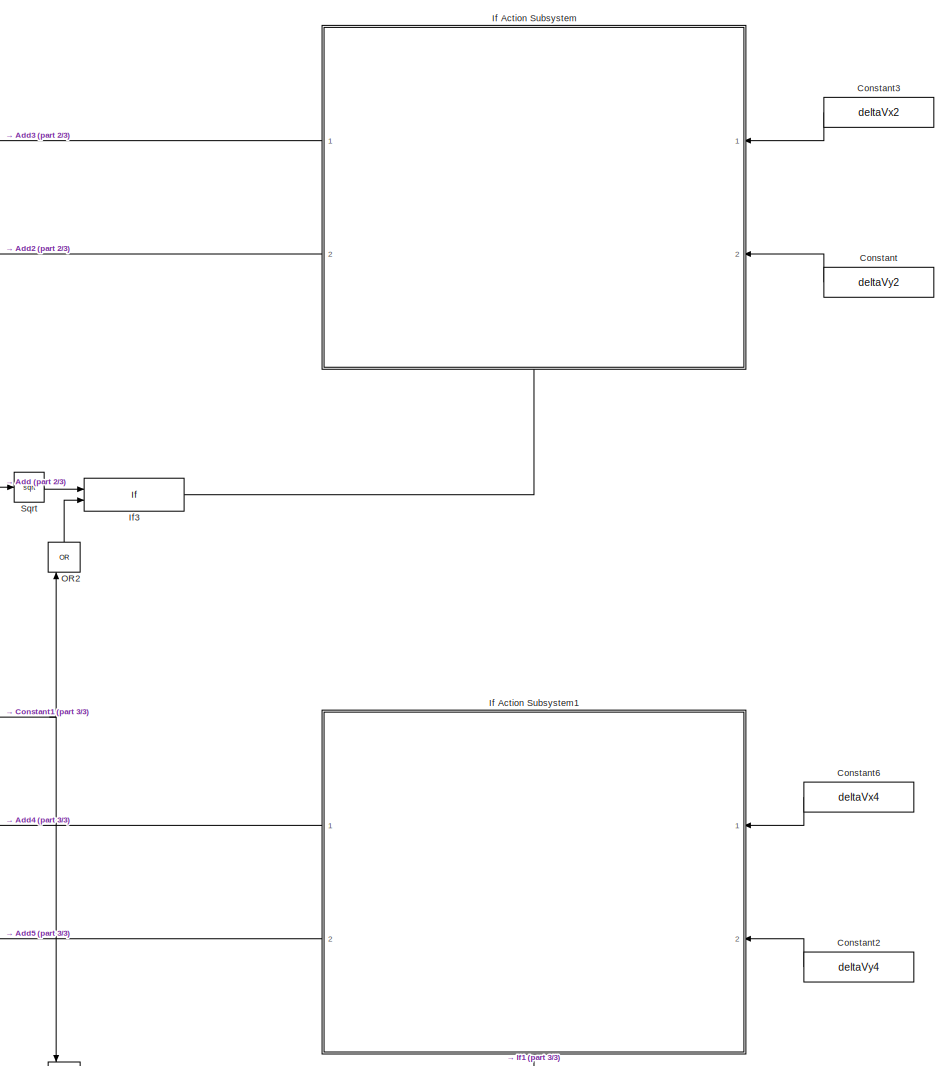
[diagram: root canvas - part 1/3, right side, full height]
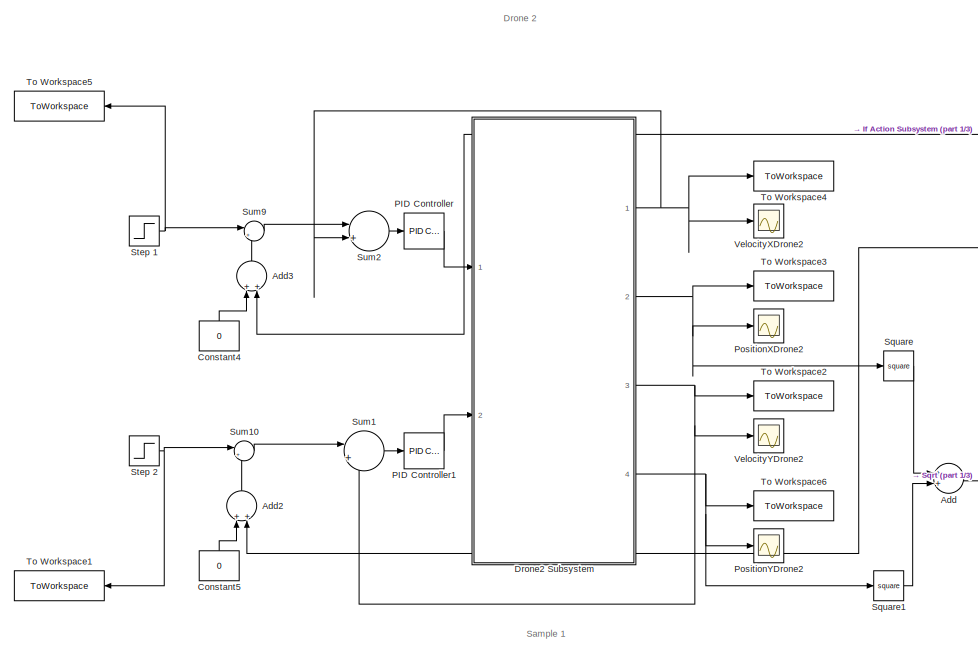
[diagram: root canvas - part 2/3, top left region]
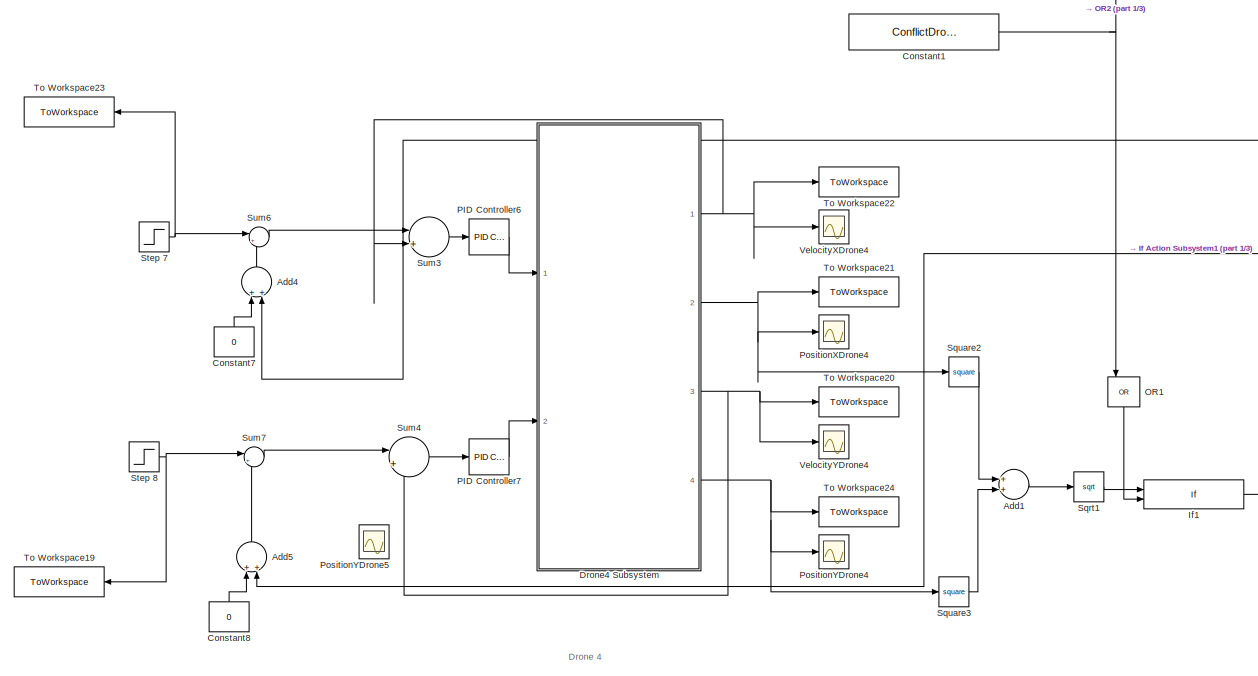
[diagram: root canvas - part 3/3, bottom left region]
MODEL slx_2d13a690a671
KIND model
CONFIG AbsTol = auto
CONFIG EnableMultiTasking = off
CONFIG FixedStep = auto
CONFIG MaxStep = auto
CONFIG MinStep = auto
CONFIG RelTol = 1e-3
CONFIG SampleTimeConstraint = Unconstrained
CONFIG Solver = VariableStepAuto
CONFIG SolverName = VariableStepAuto
CONFIG StartTime = 0.0
CONFIG StopTime = 10.0
BLOCK [Sum] Add
  InputSameDT = off
  OutDataTypeStr = Inherit: Inherit via internal rule
  Ports = [2, 1]
  SaturateOnIntegerOverflow = off
BLOCK [Sum] Add1
  InputSameDT = off
  OutDataTypeStr = Inherit: Inherit via internal rule
  Ports = [2, 1]
  SaturateOnIntegerOverflow = off
BLOCK [Sum] Add2
  InputSameDT = off
  OutDataTypeStr = Inherit: Inherit via internal rule
  Ports = [2, 1]
  SaturateOnIntegerOverflow = off
BLOCK [Sum] Add3
  InputSameDT = off
  OutDataTypeStr = Inherit: Inherit via internal rule
  Ports = [2, 1]
  SaturateOnIntegerOverflow = off
BLOCK [Sum] Add4
  InputSameDT = off
  OutDataTypeStr = Inherit: Inherit via internal rule
  Ports = [2, 1]
  SaturateOnIntegerOverflow = off
BLOCK [Sum] Add5
  InputSameDT = off
  OutDataTypeStr = Inherit: Inherit via internal rule
  Ports = [2, 1]
  SaturateOnIntegerOverflow = off
BLOCK [Constant] Constant
  Value = deltaVy2
BLOCK [Constant] Constant1
  Value = ConflictDrone2andDrone4
BLOCK [Constant] Constant2
  Value = deltaVy4
BLOCK [Constant] Constant3
  Value = deltaVx2
BLOCK [Constant] Constant4
  Value = 0
BLOCK [Constant] Constant5
  Value = 0
BLOCK [Constant] Constant6
  Value = deltaVx4
BLOCK [Constant] Constant7
  Value = 0
BLOCK [Constant] Constant8
  Value = 0
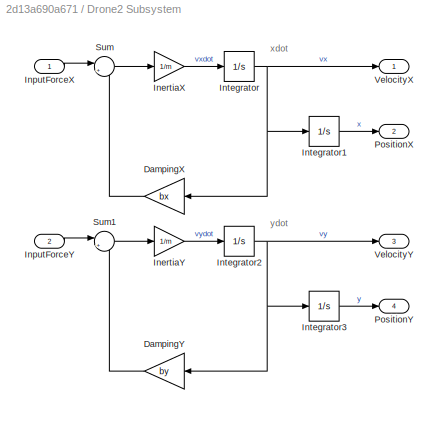
BLOCK [SubSystem] Drone2 Subsystem 
  Ports = [2, 4]
  RequestExecContextInheritance = off
BLOCK [Gain] Drone2 Subsystem /DampingX 
  Gain = bx
  OutDataTypeStr = Inherit: Inherit via internal rule
  ParamDataTypeStr = Inherit: Inherit via internal rule
  SaturateOnIntegerOverflow = off
BLOCK [Gain] Drone2 Subsystem /DampingY
  Gain = by
  OutDataTypeStr = Inherit: Inherit via internal rule
  ParamDataTypeStr = Inherit: Inherit via internal rule
  SaturateOnIntegerOverflow = off
BLOCK [Gain] Drone2 Subsystem /InertiaX
  Gain = 1/m
  OutDataTypeStr = Inherit: Inherit via internal rule
  ParamDataTypeStr = Inherit: Inherit via internal rule
  SaturateOnIntegerOverflow = off
BLOCK [Gain] Drone2 Subsystem /InertiaY
  Gain = 1/m
  OutDataTypeStr = Inherit: Inherit via internal rule
  ParamDataTypeStr = Inherit: Inherit via internal rule
  SaturateOnIntegerOverflow = off
BLOCK [Inport] Drone2 Subsystem /InputForceX
  IconDisplay = Port number
BLOCK [Inport] Drone2 Subsystem /InputForceY
  IconDisplay = Port number
  Port = 2
BLOCK [Integrator] Drone2 Subsystem /Integrator
  InitialCondition = vx20
  Ports = [1, 1]
BLOCK [Integrator] Drone2 Subsystem /Integrator1
  InitialCondition = x20
  Ports = [1, 1]
BLOCK [Integrator] Drone2 Subsystem /Integrator2
  InitialCondition = vy20
  Ports = [1, 1]
BLOCK [Integrator] Drone2 Subsystem /Integrator3
  InitialCondition = y20
  Ports = [1, 1]
BLOCK [Outport] Drone2 Subsystem /PositionX
  IconDisplay = Port number
  Port = 2
BLOCK [Outport] Drone2 Subsystem /PositionY
  IconDisplay = Port number
  Port = 4
BLOCK [Sum] Drone2 Subsystem /Sum
  IconShape = round
  InputSameDT = off
  Inputs = |+-
  OutDataTypeStr = Inherit: Inherit via internal rule
  Ports = [2, 1]
  SaturateOnIntegerOverflow = off
BLOCK [Sum] Drone2 Subsystem /Sum1
  IconShape = round
  InputSameDT = off
  Inputs = |+-
  OutDataTypeStr = Inherit: Inherit via internal rule
  Ports = [2, 1]
  SaturateOnIntegerOverflow = off
BLOCK [Outport] Drone2 Subsystem /VelocityX
  IconDisplay = Port number
BLOCK [Outport] Drone2 Subsystem /VelocityY
  IconDisplay = Port number
  Port = 3
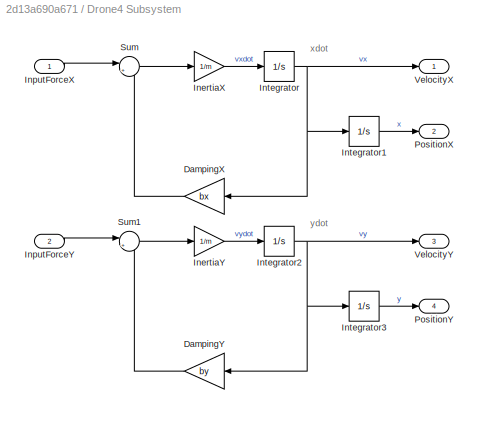
BLOCK [SubSystem] Drone4 Subsystem 
  Ports = [2, 4]
  RequestExecContextInheritance = off
BLOCK [Gain] Drone4 Subsystem /DampingX 
  Gain = bx
  OutDataTypeStr = Inherit: Inherit via internal rule
  ParamDataTypeStr = Inherit: Inherit via internal rule
  SaturateOnIntegerOverflow = off
BLOCK [Gain] Drone4 Subsystem /DampingY
  Gain = by
  OutDataTypeStr = Inherit: Inherit via internal rule
  ParamDataTypeStr = Inherit: Inherit via internal rule
  SaturateOnIntegerOverflow = off
BLOCK [Gain] Drone4 Subsystem /InertiaX
  Gain = 1/m
  OutDataTypeStr = Inherit: Inherit via internal rule
  ParamDataTypeStr = Inherit: Inherit via internal rule
  SaturateOnIntegerOverflow = off
BLOCK [Gain] Drone4 Subsystem /InertiaY
  Gain = 1/m
  OutDataTypeStr = Inherit: Inherit via internal rule
  ParamDataTypeStr = Inherit: Inherit via internal rule
  SaturateOnIntegerOverflow = off
BLOCK [Inport] Drone4 Subsystem /InputForceX
  IconDisplay = Port number
BLOCK [Inport] Drone4 Subsystem /InputForceY
  IconDisplay = Port number
  Port = 2
BLOCK [Integrator] Drone4 Subsystem /Integrator
  InitialCondition = vx40
  Ports = [1, 1]
BLOCK [Integrator] Drone4 Subsystem /Integrator1
  InitialCondition = x40
  Ports = [1, 1]
BLOCK [Integrator] Drone4 Subsystem /Integrator2
  InitialCondition = vy40
  Ports = [1, 1]
BLOCK [Integrator] Drone4 Subsystem /Integrator3
  InitialCondition = y40
  Ports = [1, 1]
BLOCK [Outport] Drone4 Subsystem /PositionX
  IconDisplay = Port number
  Port = 2
BLOCK [Outport] Drone4 Subsystem /PositionY
  IconDisplay = Port number
  Port = 4
BLOCK [Sum] Drone4 Subsystem /Sum
  IconShape = round
  InputSameDT = off
  Inputs = |+-
  OutDataTypeStr = Inherit: Inherit via internal rule
  Ports = [2, 1]
  SaturateOnIntegerOverflow = off
BLOCK [Sum] Drone4 Subsystem /Sum1
  IconShape = round
  InputSameDT = off
  Inputs = |+-
  OutDataTypeStr = Inherit: Inherit via internal rule
  Ports = [2, 1]
  SaturateOnIntegerOverflow = off
BLOCK [Outport] Drone4 Subsystem /VelocityX
  IconDisplay = Port number
BLOCK [Outport] Drone4 Subsystem /VelocityY
  IconDisplay = Port number
  Port = 3
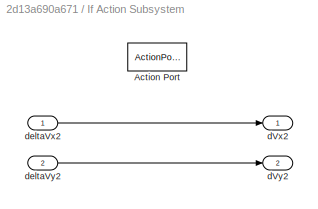
BLOCK [SubSystem] If Action Subsystem
  Ports = [2, 2, 0, 0, 0, 0, 0, 1]
  RequestExecContextInheritance = off
  TreatAsAtomicUnit = on
BLOCK [ActionPort] If Action Subsystem/Action Port
  ActionType = then
BLOCK [Outport] If Action Subsystem/dVx2
  IconDisplay = Port number
BLOCK [Outport] If Action Subsystem/dVy2
  IconDisplay = Port number
  Port = 2
BLOCK [Inport] If Action Subsystem/deltaVx2
  IconDisplay = Port number
BLOCK [Inport] If Action Subsystem/deltaVy2
  IconDisplay = Port number
  Port = 2
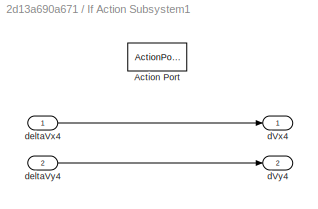
BLOCK [SubSystem] If Action Subsystem1
  Ports = [2, 2, 0, 0, 0, 0, 0, 1]
  RequestExecContextInheritance = off
  TreatAsAtomicUnit = on
BLOCK [ActionPort] If Action Subsystem1/Action Port
  ActionType = then
BLOCK [Outport] If Action Subsystem1/dVx4
  IconDisplay = Port number
BLOCK [Outport] If Action Subsystem1/dVy4
  IconDisplay = Port number
  Port = 2
BLOCK [Inport] If Action Subsystem1/deltaVx4
  IconDisplay = Port number
BLOCK [Inport] If Action Subsystem1/deltaVy4
  IconDisplay = Port number
  Port = 2
BLOCK [If] If1
  IfExpression = (u1 <= R)&(u2 == 1)
  NumInputs = 2
  Ports = [2, 1]
  ShowElse = off
BLOCK [If] If3
  IfExpression = (u1 <= R)&(u2 == 1)
  NumInputs = 2
  Ports = [2, 1]
  ShowElse = off
BLOCK [Logic] OR1
  AllPortsSameDT = off
  IconShape = distinctive
  Inputs = 3
  Operator = OR
  OutDataTypeStr = 'double'
  Ports = [3, 1]
BLOCK [Logic] OR2
  AllPortsSameDT = off
  IconShape = distinctive
  Inputs = 3
  Operator = OR
  OutDataTypeStr = 'double'
  Ports = [3, 1]
BLOCK [Reference] PID Controller  REF=simulink/Continuous/PID Controller
  Ports = [1, 1]
  SourceBlock = simulink/Continuous/PID Controller
  SourceProductBaseCode = SL
  SourceProductName = Simulink
  SourceType = PID 1dof
BLOCK [Reference] PID Controller1  REF=simulink/Continuous/PID Controller
  Ports = [1, 1]
  SourceBlock = simulink/Continuous/PID Controller
  SourceProductBaseCode = SL
  SourceProductName = Simulink
  SourceType = PID 1dof
BLOCK [Reference] PID Controller6  REF=simulink/Continuous/PID Controller
  Ports = [1, 1]
  SourceBlock = simulink/Continuous/PID Controller
  SourceProductBaseCode = SL
  SourceProductName = Simulink
  SourceType = PID 1dof
BLOCK [Reference] PID Controller7  REF=simulink/Continuous/PID Controller
  Ports = [1, 1]
  SourceBlock = simulink/Continuous/PID Controller
  SourceProductBaseCode = SL
  SourceProductName = Simulink
  SourceType = PID 1dof
BLOCK [Scope] PositionXDrone2
  Floating = off
  NumInputPorts = 1
  Ports = [1]
  ScopeSpecificationString = Simulink.scopes.TimeScopeBlockCfg('CurrentConfiguration', extmgr.ConfigurationSet(extmgr.Configuration('Core','General UI',true),extmgr.Configuration('Core','Source UI',true),extmgr.Configuration('Sources','WiredSimulink',true,'DataLoggingVariableName','ScopeData2'),extmgr.Configuration('Visuals','Time Domain',true,'SerializedDisplays',{struct('MinYLimReal','-13.93778','MaxYLimReal','12.65975','YL...<+1455ch>
BLOCK [Scope] PositionXDrone4
  Floating = off
  NumInputPorts = 1
  Ports = [1]
  ScopeSpecificationString = Simulink.scopes.TimeScopeBlockCfg('CurrentConfiguration', extmgr.ConfigurationSet(extmgr.Configuration('Core','General UI',true),extmgr.Configuration('Core','Source UI',true),extmgr.Configuration('Sources','WiredSimulink',true,'DataLoggingVariableName','ScopeData3'),extmgr.Configuration('Visuals','Time Domain',true,'SerializedDisplays',{struct('MinYLimReal','-75.81743','MaxYLimReal','8.42416','YLa...<+1453ch>
BLOCK [Scope] PositionYDrone2
  Floating = off
  NumInputPorts = 1
  Ports = [1]
  ScopeSpecificationString = Simulink.scopes.TimeScopeBlockCfg('CurrentConfiguration', extmgr.ConfigurationSet(extmgr.Configuration('Core','General UI',true),extmgr.Configuration('Core','Source UI',true),extmgr.Configuration('Sources','WiredSimulink',true,'DataLoggingVariableName','ScopeData4'),extmgr.Configuration('Visuals','Time Domain',true,'SerializedDisplays',{struct('MinYLimReal','-12488.44039','MaxYLimReal','112495.937...<+1759ch>
BLOCK [Scope] PositionYDrone4
  Floating = off
  NumInputPorts = 1
  Ports = [1]
  ScopeSpecificationString = Simulink.scopes.TimeScopeBlockCfg('CurrentConfiguration', extmgr.ConfigurationSet(extmgr.Configuration('Core','General UI',true),extmgr.Configuration('Core','Source UI',true),extmgr.Configuration('Sources','WiredSimulink',true,'DataLoggingVariableName','ScopeData5'),extmgr.Configuration('Visuals','Time Domain',true,'SerializedDisplays',{struct('MinYLimReal','-12488.44039','MaxYLimReal','112495.937...<+1759ch>
BLOCK [Scope] PositionYDrone5
  Floating = off
  NumInputPorts = 1
  Ports = [1]
  ScopeSpecificationString = Simulink.scopes.TimeScopeBlockCfg('CurrentConfiguration', extmgr.ConfigurationSet(extmgr.Configuration('Core','General UI',true),extmgr.Configuration('Core','Source UI',true),extmgr.Configuration('Sources','WiredSimulink',true,'DataLoggingVariableName','ScopeData1'),extmgr.Configuration('Visuals','Time Domain',true,'SerializedDisplays',{struct('MinYLimReal','-0.20607','MaxYLimReal','-0.00607','YLa...<+1462ch>
BLOCK [Sqrt] Sqrt
BLOCK [Sqrt] Sqrt1
BLOCK [Math] Square
  Operator = square
  Ports = [1, 1]
BLOCK [Math] Square1
  Operator = square
  Ports = [1, 1]
BLOCK [Math] Square2
  Operator = square
  Ports = [1, 1]
BLOCK [Math] Square3
  Operator = square
  Ports = [1, 1]
BLOCK [Step] Step 1
  After = VelocityStarX2
  SampleTime = 0
  Time = 0
BLOCK [Step] Step 2
  After = VelocityStarY2
  SampleTime = 0
  Time = 0
BLOCK [Step] Step 7
  After = VelocityStarX4
  SampleTime = 0
  Time = 0
BLOCK [Step] Step 8
  After = VelocityStarY4
  SampleTime = 0
  Time = 0
BLOCK [Sum] Sum1
  IconShape = round
  InputSameDT = off
  Inputs = |+-
  OutDataTypeStr = Inherit: Inherit via internal rule
  Ports = [2, 1]
  SaturateOnIntegerOverflow = off
BLOCK [Sum] Sum10
  IconShape = round
  InputSameDT = off
  Inputs = |+-
  OutDataTypeStr = Inherit: Inherit via internal rule
  Ports = [2, 1]
  SaturateOnIntegerOverflow = off
BLOCK [Sum] Sum2
  IconShape = round
  InputSameDT = off
  Inputs = |+-
  OutDataTypeStr = Inherit: Inherit via internal rule
  Ports = [2, 1]
  SaturateOnIntegerOverflow = off
BLOCK [Sum] Sum3
  IconShape = round
  InputSameDT = off
  Inputs = |+-
  OutDataTypeStr = Inherit: Inherit via internal rule
  Ports = [2, 1]
  SaturateOnIntegerOverflow = off
BLOCK [Sum] Sum4
  IconShape = round
  InputSameDT = off
  Inputs = |+-
  OutDataTypeStr = Inherit: Inherit via internal rule
  Ports = [2, 1]
  SaturateOnIntegerOverflow = off
BLOCK [Sum] Sum6
  IconShape = round
  InputSameDT = off
  Inputs = |+-
  OutDataTypeStr = Inherit: Inherit via internal rule
  Ports = [2, 1]
  SaturateOnIntegerOverflow = off
BLOCK [Sum] Sum7
  IconShape = round
  InputSameDT = off
  Inputs = |+-
  OutDataTypeStr = Inherit: Inherit via internal rule
  Ports = [2, 1]
  SaturateOnIntegerOverflow = off
BLOCK [Sum] Sum9
  IconShape = round
  InputSameDT = off
  Inputs = |+-
  OutDataTypeStr = Inherit: Inherit via internal rule
  Ports = [2, 1]
  SaturateOnIntegerOverflow = off
BLOCK [ToWorkspace] To Workspace1
  FixptAsFi = on
  MaxDataPoints = inf
  Ports = [1]
  SampleTime = -1
  Save2DSignal = 3-D array (concatenate along third dimension)
  VariableName = VelocityStarY2
BLOCK [ToWorkspace] To Workspace19
  FixptAsFi = on
  MaxDataPoints = inf
  Ports = [1]
  SampleTime = -1
  Save2DSignal = 3-D array (concatenate along third dimension)
  VariableName = VelocityStarY4
BLOCK [ToWorkspace] To Workspace2
  FixptAsFi = on
  MaxDataPoints = inf
  Ports = [1]
  SampleTime = -1
  Save2DSignal = 3-D array (concatenate along third dimension)
  VariableName = VelocityYDrone2
BLOCK [ToWorkspace] To Workspace20
  FixptAsFi = on
  MaxDataPoints = inf
  Ports = [1]
  SampleTime = -1
  Save2DSignal = 3-D array (concatenate along third dimension)
  VariableName = VelocityYDrone4
BLOCK [ToWorkspace] To Workspace21
  FixptAsFi = on
  MaxDataPoints = inf
  Ports = [1]
  SampleTime = -1
  Save2DSignal = 3-D array (concatenate along third dimension)
  VariableName = PositionXDrone4
BLOCK [ToWorkspace] To Workspace22
  FixptAsFi = on
  MaxDataPoints = inf
  Ports = [1]
  SampleTime = -1
  Save2DSignal = 3-D array (concatenate along third dimension)
  VariableName = VelocityXDrone4
BLOCK [ToWorkspace] To Workspace23
  FixptAsFi = on
  MaxDataPoints = inf
  Ports = [1]
  SampleTime = -1
  Save2DSignal = 3-D array (concatenate along third dimension)
  VariableName = VelocityStarX4
BLOCK [ToWorkspace] To Workspace24
  FixptAsFi = on
  MaxDataPoints = inf
  Ports = [1]
  SampleTime = -1
  Save2DSignal = 3-D array (concatenate along third dimension)
  VariableName = PositionYDrone4
BLOCK [ToWorkspace] To Workspace3
  FixptAsFi = on
  MaxDataPoints = inf
  Ports = [1]
  SampleTime = -1
  Save2DSignal = 3-D array (concatenate along third dimension)
  VariableName = PositionXDrone2
BLOCK [ToWorkspace] To Workspace4
  FixptAsFi = on
  MaxDataPoints = inf
  Ports = [1]
  SampleTime = -1
  Save2DSignal = 3-D array (concatenate along third dimension)
  VariableName = VelocityXDrone2
BLOCK [ToWorkspace] To Workspace5
  FixptAsFi = on
  MaxDataPoints = inf
  Ports = [1]
  SampleTime = -1
  Save2DSignal = 3-D array (concatenate along third dimension)
  VariableName = VelocityStarX2
BLOCK [ToWorkspace] To Workspace6
  FixptAsFi = on
  MaxDataPoints = inf
  Ports = [1]
  SampleTime = -1
  Save2DSignal = 3-D array (concatenate along third dimension)
  VariableName = PositionYDrone2
BLOCK [Scope] VelocityXDrone2
  Floating = off
  NumInputPorts = 1
  Ports = [1]
  ScopeSpecificationString = Simulink.scopes.TimeScopeBlockCfg('CurrentConfiguration', extmgr.ConfigurationSet(extmgr.Configuration('Core','General UI',true),extmgr.Configuration('Core','Source UI',true),extmgr.Configuration('Sources','WiredSimulink',true,'DataLoggingVariableName','ScopeData6'),extmgr.Configuration('Visuals','Time Domain',true,'SerializedDisplays',{struct('MinYLimReal','-0.0769','MaxYLimReal','-0.01503','YLab...<+1448ch>
BLOCK [Scope] VelocityXDrone4
  Floating = off
  NumInputPorts = 1
  Ports = [1]
  ScopeSpecificationString = Simulink.scopes.TimeScopeBlockCfg('CurrentConfiguration', extmgr.ConfigurationSet(extmgr.Configuration('Core','General UI',true),extmgr.Configuration('Core','Source UI',true),extmgr.Configuration('Sources','WiredSimulink',true,'DataLoggingVariableName','ScopeData7'),extmgr.Configuration('Visuals','Time Domain',true,'SerializedDisplays',{struct('MinYLimReal','0.09288','MaxYLimReal','0.16253','YLabe...<+1474ch>
BLOCK [Scope] VelocityYDrone2
  Floating = off
  NumInputPorts = 1
  Ports = [1]
  ScopeSpecificationString = Simulink.scopes.TimeScopeBlockCfg('CurrentConfiguration', extmgr.ConfigurationSet(extmgr.Configuration('Core','General UI',true),extmgr.Configuration('Core','Source UI',true),extmgr.Configuration('Sources','WiredSimulink',true,'DataLoggingVariableName','ScopeData8'),extmgr.Configuration('Visuals','Time Domain',true,'SerializedDisplays',{struct('MinYLimReal','-9.15911','MaxYLimReal','11.72136','YLa...<+1730ch>
BLOCK [Scope] VelocityYDrone4
  Floating = off
  NumInputPorts = 1
  Ports = [1]
  ScopeSpecificationString = Simulink.scopes.TimeScopeBlockCfg('CurrentConfiguration', extmgr.ConfigurationSet(extmgr.Configuration('Core','General UI',true),extmgr.Configuration('Core','Source UI',true),extmgr.Configuration('Sources','WiredSimulink',true),extmgr.Configuration('Visuals','Time Domain',true,'SerializedDisplays',{struct('MinYLimReal','-0.16253','MaxYLimReal','-0.09291','YLabelReal','','MinYLimMag','0.00000','Max...<+1439ch>
ANNOTATION (root): Drone 2
ANNOTATION (root): Drone 4
ANNOTATION (root): Sample 1
ANNOTATION Drone2 Subsystem : xdot
ANNOTATION Drone2 Subsystem : ydot
ANNOTATION Drone4 Subsystem : xdot
ANNOTATION Drone4 Subsystem : ydot
LINE Add1:1 -> Sqrt1:1
LINE Add2:1 -> Sum10:2
LINE Add3:1 -> Sum9:2
LINE Add4:1 -> Sum6:2
LINE Add5:1 -> Sum7:2
LINE Add:1 -> Sqrt:1
NET Constant1:1 -> OR1:1, OR2:1
LINE Constant2:1 -> If Action Subsystem1:2
LINE Constant3:1 -> If Action Subsystem:1
LINE Constant4:1 -> Add3:1
LINE Constant5:1 -> Add2:1
LINE Constant6:1 -> If Action Subsystem1:1
LINE Constant7:1 -> Add4:1
LINE Constant8:1 -> Add5:1
LINE Constant:1 -> If Action Subsystem:2
LINE Drone2 Subsystem /DampingX :1 -> Drone2 Subsystem /Sum:2
LINE Drone2 Subsystem /DampingY:1 -> Drone2 Subsystem /Sum1:2
LINE Drone2 Subsystem /InertiaX:1 -> Drone2 Subsystem /Integrator:1
LINE Drone2 Subsystem /InertiaY:1 -> Drone2 Subsystem /Integrator2:1
LINE Drone2 Subsystem /InputForceX:1 -> Drone2 Subsystem /Sum:1
LINE Drone2 Subsystem /InputForceY:1 -> Drone2 Subsystem /Sum1:1
LINE Drone2 Subsystem /Integrator1:1 -> Drone2 Subsystem /PositionX:1
NET Drone2 Subsystem /Integrator2:1 -> Drone2 Subsystem /DampingY:1, Drone2 Subsystem /Integrator3:1, Drone2 Subsystem /VelocityY:1
LINE Drone2 Subsystem /Integrator3:1 -> Drone2 Subsystem /PositionY:1
NET Drone2 Subsystem /Integrator:1 -> Drone2 Subsystem /DampingX :1, Drone2 Subsystem /Integrator1:1, Drone2 Subsystem /VelocityX:1
LINE Drone2 Subsystem /Sum1:1 -> Drone2 Subsystem /InertiaY:1
LINE Drone2 Subsystem /Sum:1 -> Drone2 Subsystem /InertiaX:1
NET Drone2 Subsystem :1 -> Sum2:2, To Workspace4:1, VelocityXDrone2:1
NET Drone2 Subsystem :2 -> PositionXDrone2:1, Square:1, To Workspace3:1
NET Drone2 Subsystem :3 -> Sum1:2, To Workspace2:1, VelocityYDrone2:1
NET Drone2 Subsystem :4 -> PositionYDrone2:1, Square1:1, To Workspace6:1
LINE Drone4 Subsystem /DampingX :1 -> Drone4 Subsystem /Sum:2
LINE Drone4 Subsystem /DampingY:1 -> Drone4 Subsystem /Sum1:2
LINE Drone4 Subsystem /InertiaX:1 -> Drone4 Subsystem /Integrator:1
LINE Drone4 Subsystem /InertiaY:1 -> Drone4 Subsystem /Integrator2:1
LINE Drone4 Subsystem /InputForceX:1 -> Drone4 Subsystem /Sum:1
LINE Drone4 Subsystem /InputForceY:1 -> Drone4 Subsystem /Sum1:1
LINE Drone4 Subsystem /Integrator1:1 -> Drone4 Subsystem /PositionX:1
NET Drone4 Subsystem /Integrator2:1 -> Drone4 Subsystem /DampingY:1, Drone4 Subsystem /Integrator3:1, Drone4 Subsystem /VelocityY:1
LINE Drone4 Subsystem /Integrator3:1 -> Drone4 Subsystem /PositionY:1
NET Drone4 Subsystem /Integrator:1 -> Drone4 Subsystem /DampingX :1, Drone4 Subsystem /Integrator1:1, Drone4 Subsystem /VelocityX:1
LINE Drone4 Subsystem /Sum1:1 -> Drone4 Subsystem /InertiaY:1
LINE Drone4 Subsystem /Sum:1 -> Drone4 Subsystem /InertiaX:1
NET Drone4 Subsystem :1 -> Sum3:2, To Workspace22:1, VelocityXDrone4:1
NET Drone4 Subsystem :2 -> PositionXDrone4:1, Square2:1, To Workspace21:1
NET Drone4 Subsystem :3 -> Sum4:2, To Workspace20:1, VelocityYDrone4:1
NET Drone4 Subsystem :4 -> PositionYDrone4:1, Square3:1, To Workspace24:1
LINE If Action Subsystem/deltaVx2:1 -> If Action Subsystem/dVx2:1
LINE If Action Subsystem/deltaVy2:1 -> If Action Subsystem/dVy2:1
LINE If Action Subsystem1/deltaVx4:1 -> If Action Subsystem1/dVx4:1
LINE If Action Subsystem1/deltaVy4:1 -> If Action Subsystem1/dVy4:1
LINE If Action Subsystem1:1 -> Add4:2
LINE If Action Subsystem1:2 -> Add5:2
LINE If Action Subsystem:1 -> Add3:2
LINE If Action Subsystem:2 -> Add2:2
LINE If1:1 -> If Action Subsystem1:ifaction
LINE If3:1 -> If Action Subsystem:ifaction
LINE OR1:1 -> If1:2
LINE OR2:1 -> If3:2
LINE PID Controller1:1 -> Drone2 Subsystem :2
LINE PID Controller6:1 -> Drone4 Subsystem :1
LINE PID Controller7:1 -> Drone4 Subsystem :2
LINE PID Controller:1 -> Drone2 Subsystem :1
LINE Sqrt1:1 -> If1:1
LINE Sqrt:1 -> If3:1
LINE Square1:1 -> Add:2
LINE Square2:1 -> Add1:1
LINE Square3:1 -> Add1:2
LINE Square:1 -> Add:1
NET Step 1:1 -> Sum9:1, To Workspace5:1
NET Step 2:1 -> Sum10:1, To Workspace1:1
NET Step 7:1 -> Sum6:1, To Workspace23:1
NET Step 8:1 -> Sum7:1, To Workspace19:1
LINE Sum10:1 -> Sum1:1
LINE Sum1:1 -> PID Controller1:1
LINE Sum2:1 -> PID Controller:1
LINE Sum3:1 -> PID Controller6:1
LINE Sum4:1 -> PID Controller7:1
LINE Sum6:1 -> Sum3:1
LINE Sum7:1 -> Sum4:1
LINE Sum9:1 -> Sum2:1
note: NET lines group one-source signal fan-out (src -> all destinations, sorted); 1:1 wires keep LINE
